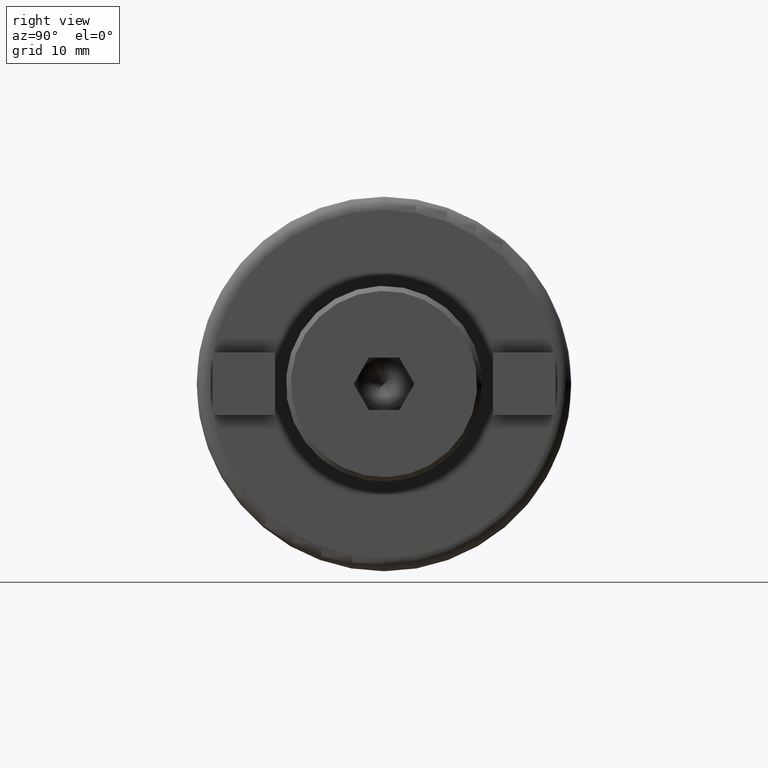
[diagram: clean part render]
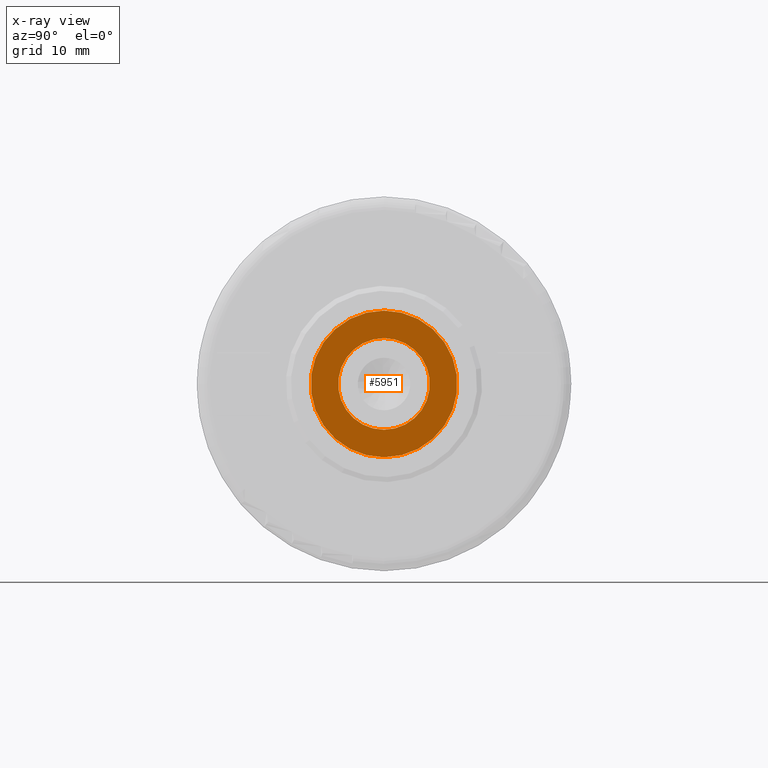
[diagram: x-ray — body ghosted, one internal face saturated and labeled with its STEP entity id]
A machine part, right view, then the same camera in x-ray: the body is ghosted and one INTERNAL B-rep face — a face not visible from any outside direction — is saturated and labeled: STEP entity #5951.
In plain terms, the highlighted planar face has unit normal (-1, 0, 0).
Its self-contained STEP definition (entity closure, byte-faithful):
#20 = DIRECTION ( 'NONE',  ( -1.000000000000000000, 0.0000000000000000000, -0.0000000000000000000 ) ) ;
#69 = CARTESIAN_POINT ( 'NONE',  ( 67.50000000000000000, 11.19999999999999900, 0.0000000000000000000 ) ) ;
#95 = DIRECTION ( 'NONE',  ( 0.0000000000000000000, 0.0000000000000000000, -1.000000000000000000 ) ) ;
#137 = CARTESIAN_POINT ( 'NONE',  ( 67.50000000000000000, 0.0000000000000000000, 0.0000000000000000000 ) ) ;
#264 = FACE_OUTER_BOUND ( 'NONE', #4546, .T. ) ;
#298 = EDGE_CURVE ( 'NONE', #6458, #4833, #5824, .T. ) ;
#741 = CARTESIAN_POINT ( 'NONE',  ( 67.49999999996372000, 0.0000000000000000000, 0.0000000000000000000 ) ) ;
#1598 = CARTESIAN_POINT ( 'NONE',  ( 67.50000000000000000, 0.0000000000000000000, 11.19999999999999900 ) ) ;
#1701 = FACE_BOUND ( 'NONE', #6767, .T. ) ;
#1952 = AXIS2_PLACEMENT_3D ( 'NONE', #6883, #1969, #2005 ) ;
#1957 = CIRCLE ( 'NONE', #1952, 6.999985999999999800 ) ;
#1969 = DIRECTION ( 'NONE',  ( 1.000000000000000000, -0.0000000000000000000, -0.0000000000000000000 ) ) ;
#2005 = DIRECTION ( 'NONE',  ( 0.0000000000000000000, 0.0000000000000000000, -1.000000000000000000 ) ) ;
#2380 = CARTESIAN_POINT ( 'NONE',  ( 67.49999999996372000, 8.572510448976284200E-016, 6.999985999999999800 ) ) ;
#2508 = EDGE_CURVE ( 'NONE', #5479, #7379, #3613, .T. ) ;
#2523 = DIRECTION ( 'NONE',  ( -0.0000000000000000000, 0.0000000000000000000, 1.000000000000000000 ) ) ;
#2602 = DIRECTION ( 'NONE',  ( -1.000000000000000000, -0.0000000000000000000, -0.0000000000000000000 ) ) ;
#2863 = CIRCLE ( 'NONE', #7179, 11.19999999999999900 ) ;
#3436 = ORIENTED_EDGE ( 'NONE', *, *, #4901, .F. ) ;
#3613 = CIRCLE ( 'NONE', #5231, 11.19999999999999900 ) ;
#3704 = CARTESIAN_POINT ( 'NONE',  ( 67.50000000000000000, 1.463452924981087100E-015, -11.19999999999999900 ) ) ;
#4084 = CARTESIAN_POINT ( 'NONE',  ( 67.50000000000000000, 0.0000000000000000000, 0.0000000000000000000 ) ) ;
#4546 = EDGE_LOOP ( 'NONE', ( #5981, #6960 ) ) ;
#4638 = ORIENTED_EDGE ( 'NONE', *, *, #298, .F. ) ;
#4690 = DIRECTION ( 'NONE',  ( 0.0000000000000000000, 0.0000000000000000000, 1.000000000000000000 ) ) ;
#4833 = VERTEX_POINT ( 'NONE', #5092 ) ;
#4901 = EDGE_CURVE ( 'NONE', #4833, #6458, #1957, .T. ) ;
#5092 = CARTESIAN_POINT ( 'NONE',  ( 67.49999999996372000, 0.0000000000000000000, -6.999985999999999800 ) ) ;
#5145 = AXIS2_PLACEMENT_3D ( 'NONE', #69, #20, #2523 ) ;
#5231 = AXIS2_PLACEMENT_3D ( 'NONE', #137, #2602, #6776 ) ;
#5273 = EDGE_CURVE ( 'NONE', #7379, #5479, #2863, .T. ) ;
#5316 = AXIS2_PLACEMENT_3D ( 'NONE', #741, #5654, #95 ) ;
#5479 = VERTEX_POINT ( 'NONE', #3704 ) ;
#5654 = DIRECTION ( 'NONE',  ( 1.000000000000000000, -0.0000000000000000000, -0.0000000000000000000 ) ) ;
#5824 = CIRCLE ( 'NONE', #5316, 6.999985999999999800 ) ;
#5951 = ADVANCED_FACE ( 'NONE', ( #1701, #264 ), #6105, .F. ) ;
#5981 = ORIENTED_EDGE ( 'NONE', *, *, #5273, .F. ) ;
#6105 = PLANE ( 'NONE',  #5145 ) ;
#6458 = VERTEX_POINT ( 'NONE', #2380 ) ;
#6767 = EDGE_LOOP ( 'NONE', ( #3436, #4638 ) ) ;
#6776 = DIRECTION ( 'NONE',  ( 0.0000000000000000000, 0.0000000000000000000, 1.000000000000000000 ) ) ;
#6883 = CARTESIAN_POINT ( 'NONE',  ( 67.49999999996372000, 0.0000000000000000000, 0.0000000000000000000 ) ) ;
#6960 = ORIENTED_EDGE ( 'NONE', *, *, #2508, .F. ) ;
#7179 = AXIS2_PLACEMENT_3D ( 'NONE', #4084, #7644, #4690 ) ;
#7379 = VERTEX_POINT ( 'NONE', #1598 ) ;
#7644 = DIRECTION ( 'NONE',  ( -1.000000000000000000, -0.0000000000000000000, -0.0000000000000000000 ) ) ;